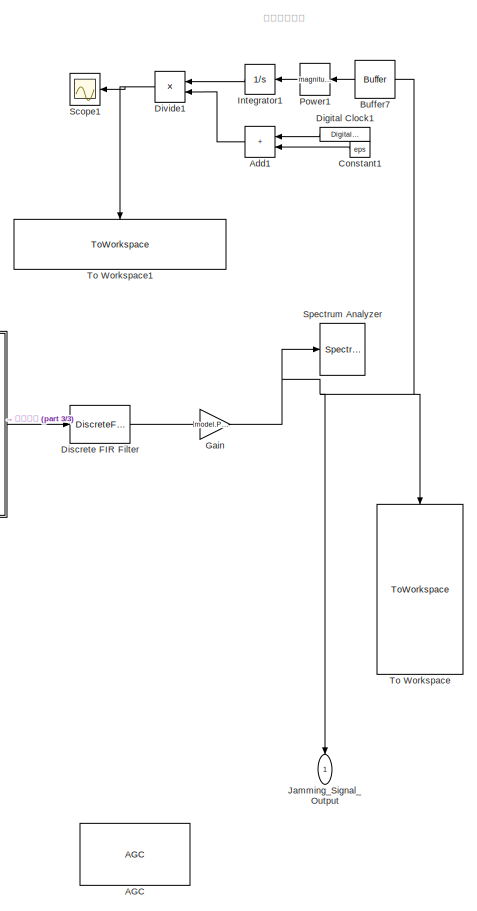
[diagram: root canvas - part 1/3, right side, full height]
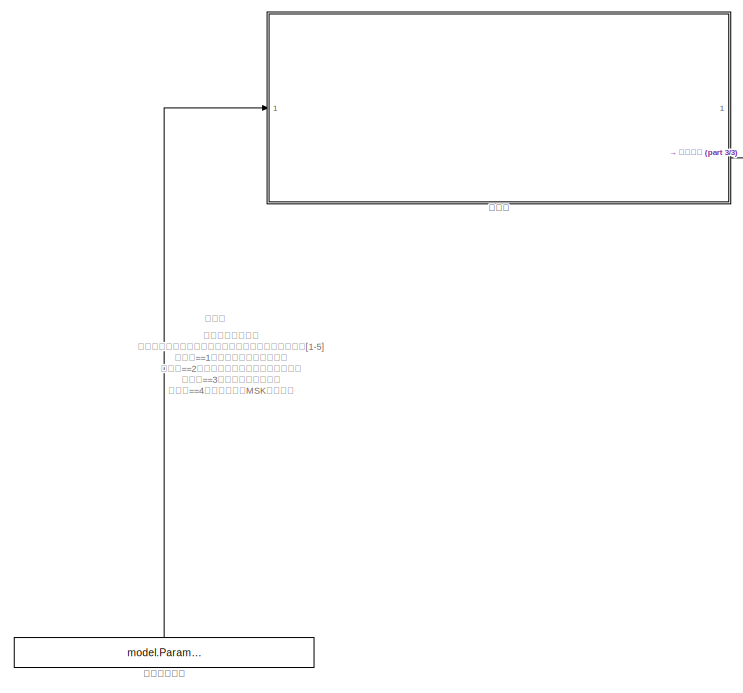
[diagram: root canvas - part 2/3, left side, full height]
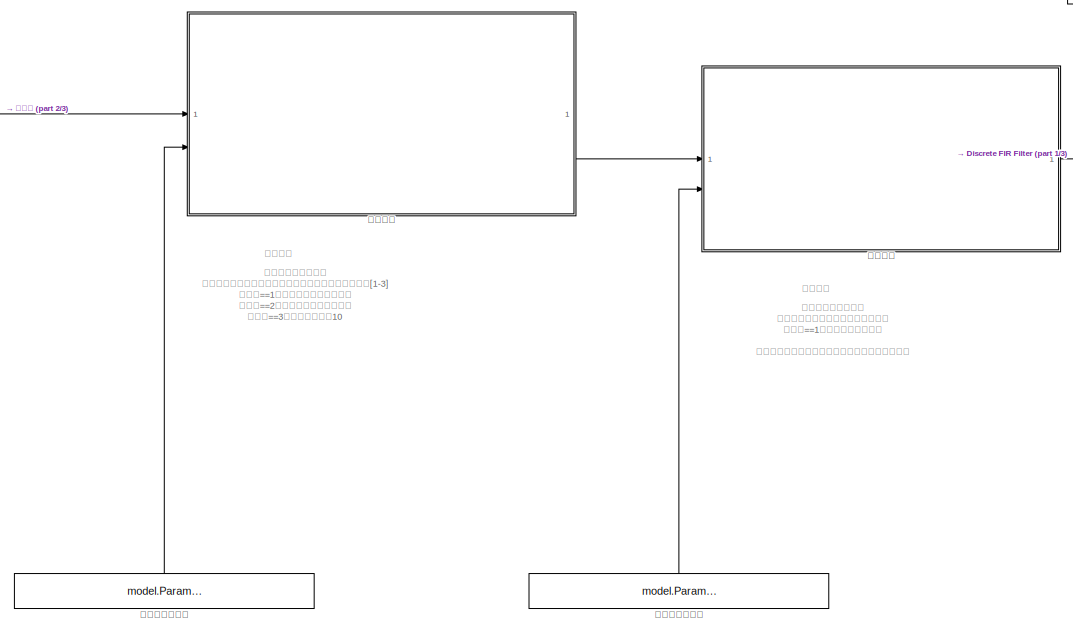
[diagram: root canvas - part 3/3, central region]
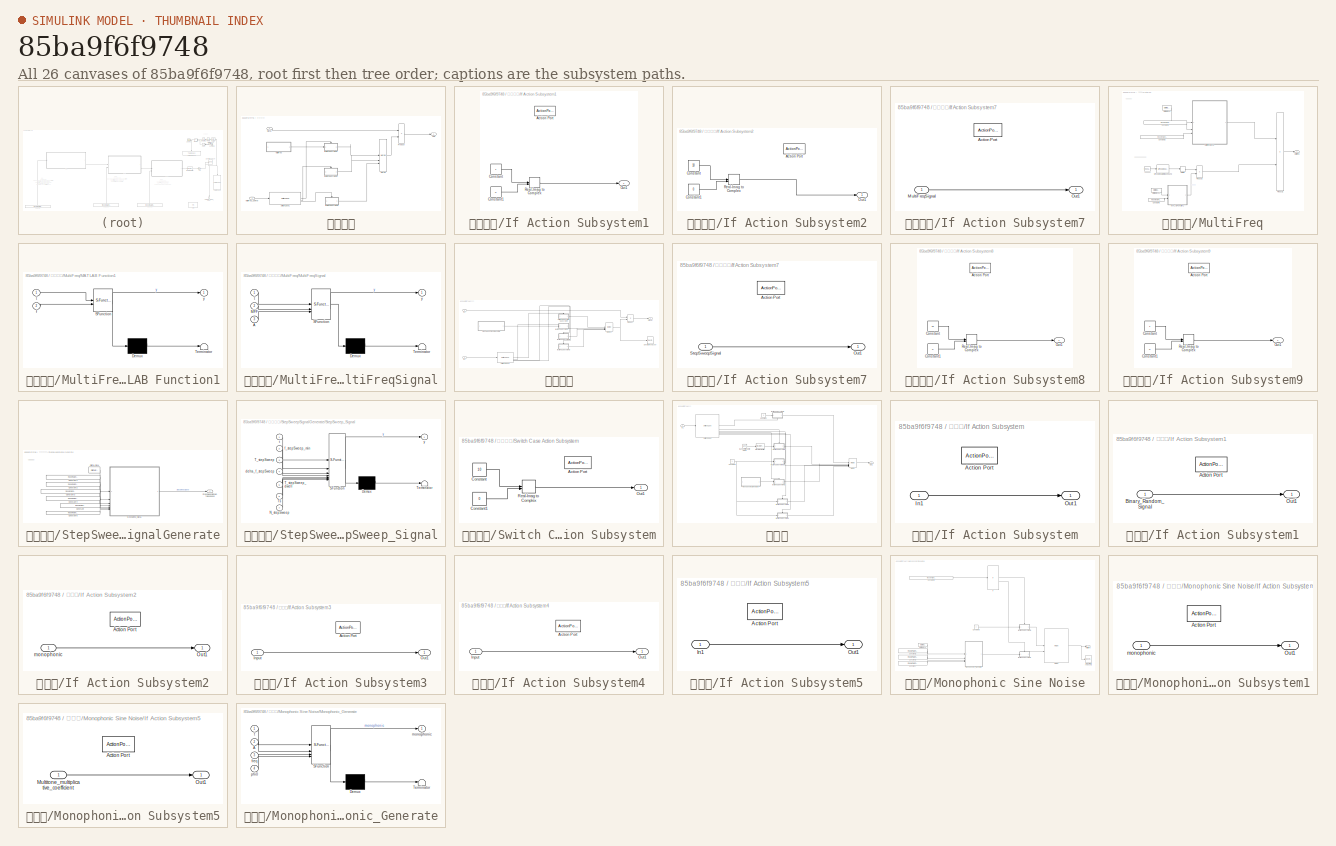
[diagram: thumbnail index - all 26 canvases of the model, root first then tree order]
MODEL slx_85ba9f6f9748
KIND model
CONFIG AbsTol = auto
CONFIG EnableMultiTasking = off
CONFIG FixedStep = auto
CONFIG InitFcn = % initial_data
CONFIG MaxStep = auto
CONFIG MinStep = auto
CONFIG RelTol = 1e-3
CONFIG SampleTimeConstraint = Unconstrained
CONFIG SolverName = VariableStepAuto
CONFIG StartTime = 0.0
CONFIG StopTime = 0.005
BLOCK [Reference] AGC  REF=commrfcorlib/AGC
  Commented = on
  SourceBlock = commrfcorlib/AGC
  SourceType = AGC
BLOCK [Sum] Add1
  IconShape = rectangular
  NameLocation = top
BLOCK [Buffer] Buffer7
  N = 1
  NameLocation = top
  OutputFrames = off
BLOCK [Constant] Constant1
  NameLocation = top
  SampleTime = model.Parameters.NoiseGen.NoiseTs
  Value = eps
BLOCK [DigitalClock] Digital Clock1
  NameLocation = top
  SampleTime = model.Parameters.NoiseGen.NoiseTs
BLOCK [DiscreteFir] Discrete FIR Filter
  Coefficients = model.Parameters.NoiseGen.noise_filter_b
  InputPortMap = u0
  OutputPortMap = o0
BLOCK [Product] Divide1
  Inputs = */
  NameLocation = top
BLOCK [Gain] Gain
  Gain = model.Parameters.jammer_power_controller
BLOCK [Integrator] Integrator1
  NameLocation = top
BLOCK [Outport] Jamming_Signal_Output
  NameLocation = top
BLOCK [Math] Power1
  NameLocation = top
  Operator = magnitude^2
BLOCK [Scope] Scope1
  Floating = off
  NameLocation = top
  NumInputPorts = 1
  ScopeSpecificationString = Simulink.scopes.TimeScopeBlockCfg('CurrentConfiguration', extmgr.ConfigurationSet(extmgr.Configuration('Core','General UI',true),extmgr.Configuration('Core','Source UI',true),extmgr.Configuration('Sources','WiredSimulink',true,'DataLoggingVariableName','ScopeData1'),extmgr.Configuration('Visuals','Time Domain',true,'SerializedDisplays',{struct('MinYLimReal','-13.45061','MaxYLimReal','121.05549','Y...<+1756ch>
BLOCK [SpectrumAnalyzer] Spectrum Analyzer
  AllowFFTLengthLessThanSamplesPerUpdate = on
  AveragingMethod = Exponential
  AxesScaling = Manual
  Commented = on
  GraphicalSettings = {"GraphicalSettings":{"Cursors":{"Enabled":"true","LockSpacing":"false","SnapToData":"true","XLocation":"[-7745098.03921569 3320312.5]"},"SpectralMask":{"CustomReferenceLevel":"0","EnabledMasks":"None","LowerMask":"-Inf","MaskFrequencyOffset":"0","ReferenceLevel":"Custom","SelectedChannel":"1","UpperMask":"Inf"},"Style":{"AxesColor":"[0 0 0]","Cursor1TraceSource":"1","Cursor2TraceSource":"1","Curs...<+698ch>
  NameLocation = right
  SampleRate = 340000000
  ScopeSpecificationString = spbscopes.SpectrumAnalyzerBlockCfg('CurrentConfiguration', extmgr.ConfigurationSet(extmgr.Configuration('Core','General UI',true),extmgr.Configuration('Core','Source UI',true),extmgr.Configuration('Sources','WiredSimulink',true),extmgr.Configuration('Visuals','Spectrum',true,'AxesProperties',struct('Color',{[0 0 0],[0 0 0]},'XColor',{[0.686274509803922 0.686274509803922 0.686274509803922],[0.68627...<+2633ch>
  Span = 340000000
  StartFrequency = -170000000
  StopFrequency = 170000000
  WasSavedAsWebScope = on
  WindowPosition = [162 288 916 450]
  YLimits = [16.792703666476541002,24.095744456486141161]
BLOCK [ToWorkspace] To Workspace
  FixptAsFi = on
  MaxDataPoints = inf
  NameLocation = left
  SampleTime = -1
  SaveFormat = Timeseries
  VariableName = Noise
BLOCK [ToWorkspace] To Workspace1
  FixptAsFi = on
  MaxDataPoints = inf
  NameLocation = left
  SampleTime = -1
  SaveFormat = Timeseries
  VariableName = NoisePowerEstimation
BLOCK [SubSystem] 多频干扰
BLOCK [SubSystem] 多频干扰/If Action Subsystem1
  TreatAsAtomicUnit = on
BLOCK [ActionPort] 多频干扰/If Action Subsystem1/Action Port
  ActionPortLabel = default:
BLOCK [Constant] 多频干扰/If Action Subsystem1/Constant
BLOCK [Constant] 多频干扰/If Action Subsystem1/Constant1
  Value = 0
BLOCK [Outport] 多频干扰/If Action Subsystem1/Out1
BLOCK [RealImagToComplex] 多频干扰/If Action Subsystem1/Real-Imag to Complex
BLOCK [SubSystem] 多频干扰/If Action Subsystem2
  TreatAsAtomicUnit = on
BLOCK [ActionPort] 多频干扰/If Action Subsystem2/Action Port
  ActionPortLabel = case [ 2 ]:
BLOCK [Constant] 多频干扰/If Action Subsystem2/Constant
  Value = 10
BLOCK [Constant] 多频干扰/If Action Subsystem2/Constant1
  Value = 0
BLOCK [Outport] 多频干扰/If Action Subsystem2/Out1
BLOCK [RealImagToComplex] 多频干扰/If Action Subsystem2/Real-Imag to Complex
BLOCK [SubSystem] 多频干扰/If Action Subsystem7
  TreatAsAtomicUnit = on
BLOCK [ActionPort] 多频干扰/If Action Subsystem7/Action Port
  ActionPortLabel = case [ 1 ]:
BLOCK [Inport] 多频干扰/If Action Subsystem7/MultiFreqSignal
BLOCK [Outport] 多频干扰/If Action Subsystem7/Out1
BLOCK [Merge] 多频干扰/Merge
  Inputs = 3
BLOCK [SubSystem] 多频干扰/MultiFreq
BLOCK [Buffer] 多频干扰/MultiFreq/Buffer7
  N = 1
  OutputFrames = off
BLOCK [Constant] 多频干扰/MultiFreq/Constant1
  Value = model.Parameters.NoiseGen.MultiFreq.MFF
BLOCK [Constant] 多频干扰/MultiFreq/Constant2
  Value = model.Parameters.NoiseGen.MultiFreq.MFA
BLOCK [Constant] 多频干扰/MultiFreq/Constant6
  Value = model.Parameters.NoiseGen.MultiFreq.MFDistance*(model.Parameters.NoiseGen.MultiFreq.MFNum/2-0.5)
BLOCK [DigitalClock] 多频干扰/MultiFreq/Digital Clock
  SampleTime = model.Parameters.NoiseGen.NoiseTs
BLOCK [DigitalClock] 多频干扰/MultiFreq/Digital Clock1
  SampleTime = model.Parameters.NoiseGen.NoiseTs
BLOCK [Reference] 多频干扰/MultiFreq/M-FSK Modulator Baseband  REF=commdigbbndfm2/M-FSK
Modulator
Baseband
  SourceBlock = commdigbbndfm2/M-FSK\nModulator\nBaseband
  SourceType = M-FSK Modulator Baseband
  UserDataPersistent = on
BLOCK [SubSystem] 多频干扰/MultiFreq/MATLAB Function1
  ErrorFcn = Stateflow.Translate.translate
  InitFcn = f_chirp_min=4.8e6;\nf_chirp_max=5.2e6;\nT_chirp=4e-4;
  LibrarySourceBlock = simulink/User-Defined\nFunctions/MATLAB Function
  PermitHierarchicalResolution = ExplicitOnly
  SFBlockType = MATLAB Function
  TreatAsAtomicUnit = on
BLOCK [Demux] 多频干扰/MultiFreq/MATLAB Function1/ Demux 
  Outputs = 1
BLOCK [S-Function] 多频干扰/MultiFreq/MATLAB Function1/ SFunction 
  EnableBusSupport = on
  FunctionName = sf_sfun
  PortCounts = [2 2]
  SFcnIsStateOwnerBlock = off
  SFunctionDeploymentMode = off
  Tag = Stateflow S-Function 13
BLOCK [Terminator] 多频干扰/MultiFreq/MATLAB Function1/ Terminator 
BLOCK [Inport] 多频干扰/MultiFreq/MATLAB Function1/f
  Port = 2
BLOCK [Inport] 多频干扰/MultiFreq/MATLAB Function1/t
BLOCK [Outport] 多频干扰/MultiFreq/MATLAB Function1/y
BLOCK [Outport] 多频干扰/MultiFreq/MultiFreq
BLOCK [SubSystem] 多频干扰/MultiFreq/MultiFreqSignal
  ErrorFcn = Stateflow.Translate.translate
  LibrarySourceBlock = simulink/User-Defined\nFunctions/MATLAB Function
  PermitHierarchicalResolution = ExplicitOnly
  SFBlockType = MATLAB Function
  TreatAsAtomicUnit = on
BLOCK [Demux] 多频干扰/MultiFreq/MultiFreqSignal/ Demux 
  Outputs = 1
BLOCK [S-Function] 多频干扰/MultiFreq/MultiFreqSignal/ SFunction 
  EnableBusSupport = on
  FunctionName = sf_sfun
  PortCounts = [3 2]
  SFcnIsStateOwnerBlock = off
  SFunctionDeploymentMode = off
  Tag = Stateflow S-Function 17
BLOCK [Terminator] 多频干扰/MultiFreq/MultiFreqSignal/ Terminator 
BLOCK [Inport] 多频干扰/MultiFreq/MultiFreqSignal/A
  Port = 3
BLOCK [Inport] 多频干扰/MultiFreq/MultiFreqSignal/MFF
  Port = 2
BLOCK [Inport] 多频干扰/MultiFreq/MultiFreqSignal/t
BLOCK [Outport] 多频干扰/MultiFreq/MultiFreqSignal/y
BLOCK [Product] 多频干扰/MultiFreq/Product1
BLOCK [Product] 多频干扰/MultiFreq/Product3
BLOCK [Reference] 多频干扰/MultiFreq/跳频信号编码  REF=simulink/Sources/Repeating
Sequence
Stair
  SourceBlock = simulink/Sources/Repeating\nSequence\nStair
  SourceType = Repeating Sequence Stair
BLOCK [Inport] 多频干扰/MultiFreq_Control
  Port = 2
BLOCK [Outport] 多频干扰/Out1
BLOCK [Product] 多频干扰/Product
BLOCK [Inport] 多频干扰/Signal
BLOCK [SwitchCase] 多频干扰/Switch Case1
  CaseConditions = {1,2}
BLOCK [Constant] 多频干扰控制位
  NameLocation = right
  SampleTime = Inf
  Value = model.Parameters.NoiseGen.Control.MultiFreq
BLOCK [SubSystem] 干扰方式
BLOCK [SubSystem] 干扰方式/If Action Subsystem7
  TreatAsAtomicUnit = on
BLOCK [ActionPort] 干扰方式/If Action Subsystem7/Action Port
  ActionPortLabel = case [ 2 ]:
BLOCK [Outport] 干扰方式/If Action Subsystem7/Out1
BLOCK [Inport] 干扰方式/If Action Subsystem7/StepSweepSignal
BLOCK [SubSystem] 干扰方式/If Action Subsystem8
  TreatAsAtomicUnit = on
BLOCK [ActionPort] 干扰方式/If Action Subsystem8/Action Port
  ActionPortLabel = case [ 3 ]:
BLOCK [Constant] 干扰方式/If Action Subsystem8/Constant
  Value = 10
BLOCK [Constant] 干扰方式/If Action Subsystem8/Constant1
  Value = 0
BLOCK [Outport] 干扰方式/If Action Subsystem8/Out1
BLOCK [RealImagToComplex] 干扰方式/If Action Subsystem8/Real-Imag to Complex
BLOCK [SubSystem] 干扰方式/If Action Subsystem9
  TreatAsAtomicUnit = on
BLOCK [ActionPort] 干扰方式/If Action Subsystem9/Action Port
  ActionPortLabel = default:
BLOCK [Constant] 干扰方式/If Action Subsystem9/Constant
BLOCK [Constant] 干扰方式/If Action Subsystem9/Constant1
  Value = 0
BLOCK [Outport] 干扰方式/If Action Subsystem9/Out1
BLOCK [RealImagToComplex] 干扰方式/If Action Subsystem9/Real-Imag to Complex
BLOCK [Inport] 干扰方式/In1
BLOCK [Inport] 干扰方式/In2
  Port = 2
BLOCK [Merge] 干扰方式/Merge2
  Inputs = 4
BLOCK [Product] 干扰方式/Product
BLOCK [Outport] 干扰方式/Signal
BLOCK [SpectrumAnalyzer] 干扰方式/Spectrum Analyzer
  AllowFFTLengthLessThanSamplesPerUpdate = on
  AveragingMethod = Exponential
  AxesScaling = Manual
  Commented = on
  GraphicalSettings = {"GraphicalSettings":{"Cursors":{"Enabled":"true","LockSpacing":"false","SnapToData":"true","XLocation":"[-14774044.032445 1328125]"},"SpectralMask":{"CustomReferenceLevel":"0","EnabledMasks":"None","LowerMask":"-Inf","MaskFrequencyOffset":"0","ReferenceLevel":"Custom","SelectedChannel":"1","UpperMask":"Inf"},"Style":{"AxesColor":"[0 0 0]","Cursor1TraceSource":"1","Cursor2TraceSource":"1","CursorC...<+640ch>
  NameLocation = right
  SampleRate = 340000000
  ScopeSpecificationString = spbscopes.SpectrumAnalyzerBlockCfg('CurrentConfiguration', extmgr.ConfigurationSet(extmgr.Configuration('Core','General UI',true),extmgr.Configuration('Core','Source UI',true),extmgr.Configuration('Sources','WiredSimulink',true),extmgr.Configuration('Visuals','Spectrum',true,'AxesProperties',struct('Color',{[0 0 0],[0 0 0]},'XColor',{[0.686274509803922 0.686274509803922 0.686274509803922],[0.68627...<+2579ch>
  Span = 340000000
  StartFrequency = -170000000
  StopFrequency = 170000000
  WasSavedAsWebScope = on
  WindowPosition = [-1041 199 916 450]
  YLimits = [-55.253534235882824532,34.529267970454846193]
BLOCK [SubSystem] 干扰方式/StepSweepSignalGenerate
BLOCK [Constant] 干扰方式/StepSweepSignalGenerate/Constant
  Value = model.Parameters.NoiseGen.NoiseTs
BLOCK [Constant] 干扰方式/StepSweepSignalGenerate/Constant1
  Value = model.Parameters.NoiseGen.Jamming.StepSweepFmin
BLOCK [Constant] 干扰方式/StepSweepSignalGenerate/Constant2
  Value = model.Parameters.NoiseGen.Jamming.StepSweepT
BLOCK [Constant] 干扰方式/StepSweepSignalGenerate/Constant3
  Value = model.Parameters.NoiseGen.Jamming.StepSweepDeltaFstep
BLOCK [Constant] 干扰方式/StepSweepSignalGenerate/Constant4
  Value = model.Parameters.NoiseGen.Jamming.StepSweepTDwell
BLOCK [Constant] 干扰方式/StepSweepSignalGenerate/Constant5
  Value = model.Parameters.NoiseGen.Jamming.StepSweepN
BLOCK [DigitalClock] 干扰方式/StepSweepSignalGenerate/Digital Clock
  SampleTime = model.Parameters.NoiseGen.NoiseTs
BLOCK [Outport] 干扰方式/StepSweepSignalGenerate/StepSweepSignalOfBaseband
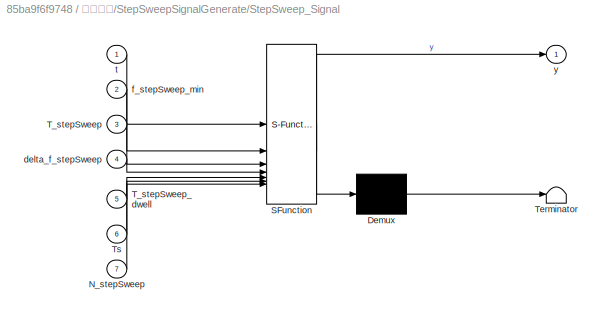
BLOCK [SubSystem] 干扰方式/StepSweepSignalGenerate/StepSweep_Signal
  ErrorFcn = Stateflow.Translate.translate
  LibrarySourceBlock = simulink/User-Defined\nFunctions/MATLAB Function
  PermitHierarchicalResolution = ExplicitOnly
  SFBlockType = MATLAB Function
  TreatAsAtomicUnit = on
BLOCK [Demux] 干扰方式/StepSweepSignalGenerate/StepSweep_Signal/ Demux 
  Outputs = 1
BLOCK [S-Function] 干扰方式/StepSweepSignalGenerate/StepSweep_Signal/ SFunction 
  EnableBusSupport = on
  FunctionName = sf_sfun
  PortCounts = [7 2]
  SFcnIsStateOwnerBlock = off
  SFunctionDeploymentMode = off
  Tag = Stateflow S-Function 8
BLOCK [Terminator] 干扰方式/StepSweepSignalGenerate/StepSweep_Signal/ Terminator 
BLOCK [Inport] 干扰方式/StepSweepSignalGenerate/StepSweep_Signal/N_stepSweep
  Port = 7
BLOCK [Inport] 干扰方式/StepSweepSignalGenerate/StepSweep_Signal/T_stepSweep
  Port = 3
BLOCK [Inport] 干扰方式/StepSweepSignalGenerate/StepSweep_Signal/T_stepSweep_dwell
  Port = 5
BLOCK [Inport] 干扰方式/StepSweepSignalGenerate/StepSweep_Signal/Ts
  Port = 6
BLOCK [Inport] 干扰方式/StepSweepSignalGenerate/StepSweep_Signal/delta_f_stepSweep
  Port = 4
BLOCK [Inport] 干扰方式/StepSweepSignalGenerate/StepSweep_Signal/f_stepSweep_min
  Port = 2
BLOCK [Inport] 干扰方式/StepSweepSignalGenerate/StepSweep_Signal/t
BLOCK [Outport] 干扰方式/StepSweepSignalGenerate/StepSweep_Signal/y
BLOCK [SubSystem] 干扰方式/Switch Case Action Subsystem
  TreatAsAtomicUnit = on
BLOCK [ActionPort] 干扰方式/Switch Case Action Subsystem/Action Port
  ActionPortLabel = case [ 1 ]:
BLOCK [Constant] 干扰方式/Switch Case Action Subsystem/Constant
  Value = 10
BLOCK [Constant] 干扰方式/Switch Case Action Subsystem/Constant1
  Value = 0
BLOCK [Outport] 干扰方式/Switch Case Action Subsystem/Out1
BLOCK [RealImagToComplex] 干扰方式/Switch Case Action Subsystem/Real-Imag to Complex
BLOCK [SwitchCase] 干扰方式/Switch Case2
  CaseConditions = {1,2,3}
BLOCK [Constant] 干扰方式控制位
  NameLocation = right
  SampleTime = Inf
  Value = model.Parameters.NoiseGen.Control.Jamming
BLOCK [SubSystem] 干扰源
BLOCK [Reference] 干扰源/Band-Limited White Noise  REF=simulink/Sources/Band-Limited
White Noise
  SourceBlock = simulink/Sources/Band-Limited\nWhite Noise
  SourceType = Band-Limited White Noise.
BLOCK [Constant] 干扰源/Constant
  Value = 0
BLOCK [Constant] 干扰源/Constant1
BLOCK [DiscreteFir] 干扰源/Discrete FIR Filter
  Coefficients = model.Parameters.NoiseGen.pulse_noise_filter_b
  InputPortMap = u0
  OutputPortMap = o0
BLOCK [SubSystem] 干扰源/If Action Subsystem
  TreatAsAtomicUnit = on
BLOCK [ActionPort] 干扰源/If Action Subsystem/Action Port
  ActionPortLabel = case [ 1 ]:
BLOCK [Inport] 干扰源/If Action Subsystem/In1
BLOCK [Outport] 干扰源/If Action Subsystem/Out1
BLOCK [SubSystem] 干扰源/If Action Subsystem1
  TreatAsAtomicUnit = on
BLOCK [ActionPort] 干扰源/If Action Subsystem1/Action Port
  ActionPortLabel = case [ 2 ]:
BLOCK [Inport] 干扰源/If Action Subsystem1/Binary_Random_Signal
BLOCK [Outport] 干扰源/If Action Subsystem1/Out1
BLOCK [SubSystem] 干扰源/If Action Subsystem2
  TreatAsAtomicUnit = on
BLOCK [ActionPort] 干扰源/If Action Subsystem2/Action Port
  ActionPortLabel = case [ 3 ]:
BLOCK [Outport] 干扰源/If Action Subsystem2/Out1
BLOCK [Inport] 干扰源/If Action Subsystem2/monophonic
BLOCK [SubSystem] 干扰源/If Action Subsystem3
  TreatAsAtomicUnit = on
BLOCK [ActionPort] 干扰源/If Action Subsystem3/Action Port
  ActionPortLabel = case [ 4 ]:
BLOCK [Inport] 干扰源/If Action Subsystem3/Input
BLOCK [Outport] 干扰源/If Action Subsystem3/Out1
BLOCK [SubSystem] 干扰源/If Action Subsystem4
  TreatAsAtomicUnit = on
BLOCK [ActionPort] 干扰源/If Action Subsystem4/Action Port
  ActionPortLabel = case [ 5 ]:
BLOCK [Inport] 干扰源/If Action Subsystem4/Input
BLOCK [Outport] 干扰源/If Action Subsystem4/Out1
BLOCK [SubSystem] 干扰源/If Action Subsystem5
  TreatAsAtomicUnit = on
BLOCK [ActionPort] 干扰源/If Action Subsystem5/Action Port
  ActionPortLabel = case [ 0 ]:
BLOCK [Inport] 干扰源/If Action Subsystem5/In1
BLOCK [Outport] 干扰源/If Action Subsystem5/Out1
BLOCK [Inport] 干扰源/In1
BLOCK [Merge] 干扰源/Merge
  Inputs = 6
BLOCK [SubSystem] 干扰源/Monophonic Sine Noise
BLOCK [Constant] 干扰源/Monophonic Sine Noise/Constant
  Value = model.Parameters.NoiseGen.SineNoisePhi0
BLOCK [Constant] 干扰源/Monophonic Sine Noise/Constant1
  Value = model.Parameters.NoiseGen.SineNoiseF
BLOCK [Constant] 干扰源/Monophonic Sine Noise/Constant2
  Value = model.Parameters.NoiseGen.SineNoiseA
BLOCK [Constant] 干扰源/Monophonic Sine Noise/Constant3
BLOCK [Constant] 干扰源/Monophonic Sine Noise/Constant6
  Value = model.Parameters.NoiseGen.SineNoiseMulti_selection
BLOCK [DigitalClock] 干扰源/Monophonic Sine Noise/Digital Clock
  SampleTime = model.Parameters.NoiseGen.NoiseTs
BLOCK [If] 干扰源/Monophonic Sine Noise/If
  IfExpression = u1 == 1
BLOCK [SubSystem] 干扰源/Monophonic Sine Noise/If Action Subsystem1
  TreatAsAtomicUnit = on
BLOCK [ActionPort] 干扰源/Monophonic Sine Noise/If Action Subsystem1/Action Port
  ActionPortLabel = else
BLOCK [Outport] 干扰源/Monophonic Sine Noise/If Action Subsystem1/Out1
BLOCK [Inport] 干扰源/Monophonic Sine Noise/If Action Subsystem1/monophonic
BLOCK [SubSystem] 干扰源/Monophonic Sine Noise/If Action Subsystem5
  TreatAsAtomicUnit = on
BLOCK [ActionPort] 干扰源/Monophonic Sine Noise/If Action Subsystem5/Action Port
  ActionPortLabel = if(u1 == 1)
BLOCK [Inport] 干扰源/Monophonic Sine Noise/If Action Subsystem5/Multitone_multiplicative_coefficient
BLOCK [Outport] 干扰源/Monophonic Sine Noise/If Action Subsystem5/Out1
BLOCK [Merge] 干扰源/Monophonic Sine Noise/Merge
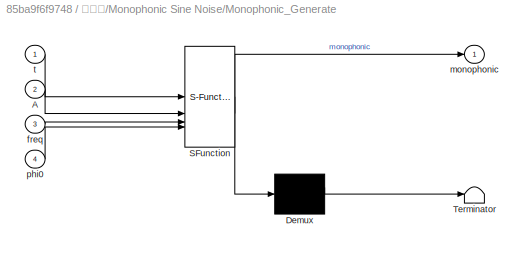
BLOCK [SubSystem] 干扰源/Monophonic Sine Noise/Monophonic_Generate
  ErrorFcn = Stateflow.Translate.translate
  LibrarySourceBlock = simulink/User-Defined\nFunctions/MATLAB Function
  PermitHierarchicalResolution = ExplicitOnly
  SFBlockType = MATLAB Function
  TreatAsAtomicUnit = on
BLOCK [Demux] 干扰源/Monophonic Sine Noise/Monophonic_Generate/ Demux 
  Outputs = 1
BLOCK [S-Function] 干扰源/Monophonic Sine Noise/Monophonic_Generate/ SFunction 
  EnableBusSupport = on
  FunctionName = sf_sfun
  PortCounts = [4 2]
  SFcnIsStateOwnerBlock = off
  SFunctionDeploymentMode = off
  Tag = Stateflow S-Function 3
BLOCK [Terminator] 干扰源/Monophonic Sine Noise/Monophonic_Generate/ Terminator 
BLOCK [Inport] 干扰源/Monophonic Sine Noise/Monophonic_Generate/A
  Port = 2
BLOCK [Inport] 干扰源/Monophonic Sine Noise/Monophonic_Generate/freq
  Port = 3
BLOCK [Outport] 干扰源/Monophonic Sine Noise/Monophonic_Generate/monophonic
BLOCK [Inport] 干扰源/Monophonic Sine Noise/Monophonic_Generate/phi0
  Port = 4
BLOCK [Inport] 干扰源/Monophonic Sine Noise/Monophonic_Generate/t
BLOCK [SpectrumAnalyzer] 干扰源/Monophonic Sine Noise/Spectrum Analyzer1
  AllowFFTLengthLessThanSamplesPerUpdate = on
  AveragingMethod = Exponential
  AxesScaling = Manual
  Commented = on
  GraphicalSettings = {"GraphicalSettings":{"Channel":{"ACPROffsets":"[68000000 119000000]","AdjacentBW":"34000000","CenterFrequency":"0","Enabled":"false","FilterCoeff":"0.5","FilterShape":"None","FrequencySpan":"span-and-center-frequency","NumOffsets":"2","PercentOccupiedBW":"99","Span":"68000000","StartFrequency":"-34000000","StopFrequency":"34000000","Type":"occupied-bandwidth"},"Cursors":{"Enabled":"true","LockSpa...<+990ch>
  NameLocation = right
  SampleRate = 340000000
  ScopeSpecificationString = spbscopes.SpectrumAnalyzerBlockCfg('CurrentConfiguration', extmgr.ConfigurationSet(extmgr.Configuration('Core','General UI',true),extmgr.Configuration('Core','Source UI',true),extmgr.Configuration('Sources','WiredSimulink',true),extmgr.Configuration('Visuals','Spectrum',true,'AxesProperties',struct('Color',{[0 0 0],[0 0 0]},'XColor',{[0.686274509803922 0.686274509803922 0.686274509803922],[0.68627...<+2835ch>
  Span = 340000000
  StartFrequency = -170000000
  StopFrequency = 170000000
  WasSavedAsWebScope = on
  WindowPosition = [-1168 236 916 450]
  YLimits = [-88.119268432802542179,31.5056137623361181]
BLOCK [Outport] 干扰源/Monophonic Sine Noise/multitone
BLOCK [Outport] 干扰源/Out1
BLOCK [SwitchCase] 干扰源/Switch Case
  CaseConditions = {0,1,2,3,4,5}
BLOCK [Constant] 干扰源控制位
  SampleTime = Inf
  Value = model.Parameters.NoiseGen.Control.Source
ANNOTATION (root): 功率估计部分
ANNOTATION (root): 多频干扰
ANNOTATION (root): 多频干扰模块功能： 由调制方式控制位来是否为多频干扰 控制位==1的时候，是多频干扰 控制位不在上面集合范围的时候，不变输出，警告
ANNOTATION (root): 干扰方式
ANNOTATION (root): 干扰方式模块功能： 由调制方式控制位来控制调制方式，控制位变化范围是[1-3] 控制位==1的时候，是线性跳频干扰 控制位==2的时候，是步进跳频干扰 控制位==3的时候，增益为10 控制位不在上面集合范围的时候，不变输出，警告
ANNOTATION (root): 干扰源
ANNOTATION (root): 干扰源模块功能： 由干扰源控制位来控制干扰源的波形，控制变换范围是[1-5] 控制位==1的时候，输出高斯白噪声 控制位==2的时候，输出随机二元码调制噪声 控制位==3的时候，输出正弦波 控制位==4的时候，输出MSK干扰噪声 控制位==5的时候，输出窄带高斯噪声 控制位不在上面的集合的时候，没有输出
ANNOTATION 多频干扰/MultiFreq: 多音干扰模块
ANNOTATION 多频干扰/MultiFreq: 帧信号对应的本地载波生成
ANNOTATION 干扰方式/StepSweepSignalGenerate: 步进调频模块
LINE Add1:1 -> Divide1:2
LINE Buffer7:1 -> Power1:1
LINE Constant1:1 -> Add1:2
LINE Digital Clock1:1 -> Add1:1
LINE Discrete FIR Filter:1 -> Gain:1
NET Divide1:1 -> Scope1:1, To Workspace1:1
NET Gain:1 -> Buffer7:1, Jamming_Signal_Output:1, Spectrum Analyzer:1, To Workspace:1
LINE Integrator1:1 -> Divide1:1
LINE Power1:1 -> Integrator1:1
LINE 多频干扰/If Action Subsystem1/Constant1:1 -> 多频干扰/If Action Subsystem1/Real-Imag to Complex:2
LINE 多频干扰/If Action Subsystem1/Constant:1 -> 多频干扰/If Action Subsystem1/Real-Imag to Complex:1
LINE 多频干扰/If Action Subsystem1/Real-Imag to Complex:1 -> 多频干扰/If Action Subsystem1/Out1:1
LINE 多频干扰/If Action Subsystem1:1 -> 多频干扰/Merge:3
LINE 多频干扰/If Action Subsystem2/Constant1:1 -> 多频干扰/If Action Subsystem2/Real-Imag to Complex:2
LINE 多频干扰/If Action Subsystem2/Constant:1 -> 多频干扰/If Action Subsystem2/Real-Imag to Complex:1
LINE 多频干扰/If Action Subsystem2/Real-Imag to Complex:1 -> 多频干扰/If Action Subsystem2/Out1:1
LINE 多频干扰/If Action Subsystem2:1 -> 多频干扰/Merge:2
LINE 多频干扰/If Action Subsystem7/MultiFreqSignal:1 -> 多频干扰/If Action Subsystem7/Out1:1
LINE 多频干扰/If Action Subsystem7:1 -> 多频干扰/Merge:1
LINE 多频干扰/Merge:1 -> 多频干扰/Product:2
LINE 多频干扰/MultiFreq/Buffer7:1 -> 多频干扰/MultiFreq/Product3:1
LINE 多频干扰/MultiFreq/Constant1:1 -> 多频干扰/MultiFreq/MultiFreqSignal:2
LINE 多频干扰/MultiFreq/Constant2:1 -> 多频干扰/MultiFreq/MultiFreqSignal:3
LINE 多频干扰/MultiFreq/Constant6:1 -> 多频干扰/MultiFreq/MATLAB Function1:2
LINE 多频干扰/MultiFreq/Digital Clock1:1 -> 多频干扰/MultiFreq/MATLAB Function1:1
LINE 多频干扰/MultiFreq/Digital Clock:1 -> 多频干扰/MultiFreq/MultiFreqSignal:1
LINE 多频干扰/MultiFreq/M-FSK Modulator Baseband:1 -> 多频干扰/MultiFreq/Buffer7:1
LINE 多频干扰/MultiFreq/MATLAB Function1:1 -> 多频干扰/MultiFreq/Product3:2
LINE 多频干扰/MultiFreq/MultiFreqSignal:1 -> 多频干扰/MultiFreq/Product1:1
LINE 多频干扰/MultiFreq/Product1:1 -> 多频干扰/MultiFreq/MultiFreq:1
LINE 多频干扰/MultiFreq/Product3:1 -> 多频干扰/MultiFreq/Product1:2
LINE 多频干扰/MultiFreq/跳频信号编码:1 -> 多频干扰/MultiFreq/M-FSK Modulator Baseband:1
LINE 多频干扰/MultiFreq:1 -> 多频干扰/If Action Subsystem7:1
LINE 多频干扰/MultiFreq_Control:1 -> 多频干扰/Switch Case1:1
LINE 多频干扰/Product:1 -> 多频干扰/Out1:1
LINE 多频干扰/Signal:1 -> 多频干扰/Product:1
LINE 多频干扰/Switch Case1:1 -> 多频干扰/If Action Subsystem7:ifaction
LINE 多频干扰/Switch Case1:2 -> 多频干扰/If Action Subsystem2:ifaction
LINE 多频干扰/Switch Case1:3 -> 多频干扰/If Action Subsystem1:ifaction
LINE 多频干扰:1 -> Discrete FIR Filter:1
LINE 多频干扰控制位:1 -> 多频干扰:2
LINE 干扰方式/If Action Subsystem7/StepSweepSignal:1 -> 干扰方式/If Action Subsystem7/Out1:1
LINE 干扰方式/If Action Subsystem7:1 -> 干扰方式/Merge2:2
LINE 干扰方式/If Action Subsystem8/Constant1:1 -> 干扰方式/If Action Subsystem8/Real-Imag to Complex:2
LINE 干扰方式/If Action Subsystem8/Constant:1 -> 干扰方式/If Action Subsystem8/Real-Imag to Complex:1
LINE 干扰方式/If Action Subsystem8/Real-Imag to Complex:1 -> 干扰方式/If Action Subsystem8/Out1:1
LINE 干扰方式/If Action Subsystem8:1 -> 干扰方式/Merge2:3
LINE 干扰方式/If Action Subsystem9/Constant1:1 -> 干扰方式/If Action Subsystem9/Real-Imag to Complex:2
LINE 干扰方式/If Action Subsystem9/Constant:1 -> 干扰方式/If Action Subsystem9/Real-Imag to Complex:1
LINE 干扰方式/If Action Subsystem9/Real-Imag to Complex:1 -> 干扰方式/If Action Subsystem9/Out1:1
LINE 干扰方式/If Action Subsystem9:1 -> 干扰方式/Merge2:4
LINE 干扰方式/In1:1 -> 干扰方式/Product:1
LINE 干扰方式/In2:1 -> 干扰方式/Switch Case2:1
NET 干扰方式/Merge2:1 -> 干扰方式/Product:2, 干扰方式/Spectrum Analyzer:1
LINE 干扰方式/Product:1 -> 干扰方式/Signal:1
LINE 干扰方式/StepSweepSignalGenerate/Constant1:1 -> 干扰方式/StepSweepSignalGenerate/StepSweep_Signal:2
LINE 干扰方式/StepSweepSignalGenerate/Constant2:1 -> 干扰方式/StepSweepSignalGenerate/StepSweep_Signal:3
LINE 干扰方式/StepSweepSignalGenerate/Constant3:1 -> 干扰方式/StepSweepSignalGenerate/StepSweep_Signal:4
LINE 干扰方式/StepSweepSignalGenerate/Constant4:1 -> 干扰方式/StepSweepSignalGenerate/StepSweep_Signal:5
LINE 干扰方式/StepSweepSignalGenerate/Constant5:1 -> 干扰方式/StepSweepSignalGenerate/StepSweep_Signal:7
LINE 干扰方式/StepSweepSignalGenerate/Constant:1 -> 干扰方式/StepSweepSignalGenerate/StepSweep_Signal:6
LINE 干扰方式/StepSweepSignalGenerate/Digital Clock:1 -> 干扰方式/StepSweepSignalGenerate/StepSweep_Signal:1
LINE 干扰方式/StepSweepSignalGenerate/StepSweep_Signal:1 -> 干扰方式/StepSweepSignalGenerate/StepSweepSignalOfBaseband:1
LINE 干扰方式/StepSweepSignalGenerate:1 -> 干扰方式/If Action Subsystem7:1
LINE 干扰方式/Switch Case Action Subsystem/Constant1:1 -> 干扰方式/Switch Case Action Subsystem/Real-Imag to Complex:2
LINE 干扰方式/Switch Case Action Subsystem/Constant:1 -> 干扰方式/Switch Case Action Subsystem/Real-Imag to Complex:1
LINE 干扰方式/Switch Case Action Subsystem/Real-Imag to Complex:1 -> 干扰方式/Switch Case Action Subsystem/Out1:1
LINE 干扰方式/Switch Case Action Subsystem:1 -> 干扰方式/Merge2:1
LINE 干扰方式/Switch Case2:1 -> 干扰方式/Switch Case Action Subsystem:ifaction
LINE 干扰方式/Switch Case2:2 -> 干扰方式/If Action Subsystem7:ifaction
LINE 干扰方式/Switch Case2:3 -> 干扰方式/If Action Subsystem8:ifaction
LINE 干扰方式/Switch Case2:4 -> 干扰方式/If Action Subsystem9:ifaction
LINE 干扰方式:1 -> 多频干扰:1
LINE 干扰方式控制位:1 -> 干扰方式:2
LINE 干扰源/Band-Limited White Noise:1 -> 干扰源/Discrete FIR Filter:1
NET 干扰源/Constant1:1 -> 干扰源/If Action Subsystem1:1, 干扰源/If Action Subsystem3:1, 干扰源/If Action Subsystem4:1
LINE 干扰源/Constant:1 -> 干扰源/If Action Subsystem5:1
LINE 干扰源/Discrete FIR Filter:1 -> 干扰源/If Action Subsystem:1
LINE 干扰源/If Action Subsystem/In1:1 -> 干扰源/If Action Subsystem/Out1:1
LINE 干扰源/If Action Subsystem1/Binary_Random_Signal:1 -> 干扰源/If Action Subsystem1/Out1:1
LINE 干扰源/If Action Subsystem1:1 -> 干扰源/Merge:3
LINE 干扰源/If Action Subsystem2/monophonic:1 -> 干扰源/If Action Subsystem2/Out1:1
LINE 干扰源/If Action Subsystem2:1 -> 干扰源/Merge:4
LINE 干扰源/If Action Subsystem3/Input:1 -> 干扰源/If Action Subsystem3/Out1:1
LINE 干扰源/If Action Subsystem3:1 -> 干扰源/Merge:5
LINE 干扰源/If Action Subsystem4/Input:1 -> 干扰源/If Action Subsystem4/Out1:1
LINE 干扰源/If Action Subsystem4:1 -> 干扰源/Merge:6
LINE 干扰源/If Action Subsystem5/In1:1 -> 干扰源/If Action Subsystem5/Out1:1
LINE 干扰源/If Action Subsystem5:1 -> 干扰源/Merge:1
LINE 干扰源/If Action Subsystem:1 -> 干扰源/Merge:2
LINE 干扰源/In1:1 -> 干扰源/Switch Case:1
LINE 干扰源/Merge:1 -> 干扰源/Out1:1
LINE 干扰源/Monophonic Sine Noise/Constant1:1 -> 干扰源/Monophonic Sine Noise/Monophonic_Generate:3
LINE 干扰源/Monophonic Sine Noise/Constant2:1 -> 干扰源/Monophonic Sine Noise/Monophonic_Generate:2
LINE 干扰源/Monophonic Sine Noise/Constant3:1 -> 干扰源/Monophonic Sine Noise/If Action Subsystem5:1
LINE 干扰源/Monophonic Sine Noise/Constant6:1 -> 干扰源/Monophonic Sine Noise/If:1
LINE 干扰源/Monophonic Sine Noise/Constant:1 -> 干扰源/Monophonic Sine Noise/Monophonic_Generate:4
LINE 干扰源/Monophonic Sine Noise/Digital Clock:1 -> 干扰源/Monophonic Sine Noise/Monophonic_Generate:1
LINE 干扰源/Monophonic Sine Noise/If Action Subsystem1/monophonic:1 -> 干扰源/Monophonic Sine Noise/If Action Subsystem1/Out1:1
LINE 干扰源/Monophonic Sine Noise/If Action Subsystem1:1 -> 干扰源/Monophonic Sine Noise/Merge:2
LINE 干扰源/Monophonic Sine Noise/If Action Subsystem5/Multitone_multiplicative_coefficient:1 -> 干扰源/Monophonic Sine Noise/If Action Subsystem5/Out1:1
LINE 干扰源/Monophonic Sine Noise/If Action Subsystem5:1 -> 干扰源/Monophonic Sine Noise/Merge:1
LINE 干扰源/Monophonic Sine Noise/If:1 -> 干扰源/Monophonic Sine Noise/If Action Subsystem5:ifaction
LINE 干扰源/Monophonic Sine Noise/If:2 -> 干扰源/Monophonic Sine Noise/If Action Subsystem1:ifaction
NET 干扰源/Monophonic Sine Noise/Merge:1 -> 干扰源/Monophonic Sine Noise/Spectrum Analyzer1:1, 干扰源/Monophonic Sine Noise/multitone:1
LINE 干扰源/Monophonic Sine Noise/Monophonic_Generate:1 -> 干扰源/Monophonic Sine Noise/If Action Subsystem1:1
LINE 干扰源/Monophonic Sine Noise:1 -> 干扰源/If Action Subsystem2:1
LINE 干扰源/Switch Case:1 -> 干扰源/If Action Subsystem5:ifaction
LINE 干扰源/Switch Case:2 -> 干扰源/If Action Subsystem:ifaction
LINE 干扰源/Switch Case:3 -> 干扰源/If Action Subsystem1:ifaction
LINE 干扰源/Switch Case:4 -> 干扰源/If Action Subsystem2:ifaction
LINE 干扰源/Switch Case:5 -> 干扰源/If Action Subsystem3:ifaction
LINE 干扰源/Switch Case:6 -> 干扰源/If Action Subsystem4:ifaction
LINE 干扰源:1 -> 干扰方式:1
LINE 干扰源控制位:1 -> 干扰源:1
note: NET lines group one-source signal fan-out (src -> all destinations, sorted); 1:1 wires keep LINE
CHART 干扰源/Monophonic Sine Noise/Monophonic_Generate states=1 transitions=1
  STATE_LABEL 'eML_blk_kernel()'
  STATE_LABEL 'SCRIPT:\nfunction monophonic = MonophonicGenerate(t, A, freq, phi0)\n    monophonic = A * cos(2*pi*freq*t+phi0);\nend\n'
CHART 干扰方式/StepSweepSignalGenerate/StepSweep_Signal states=1 transitions=1
  STATE_LABEL 'eML_blk_kernel()'
  STATE_LABEL 'SCRIPT:\nfunction y  = StepSweep(t, f_stepSweep_min, T_stepSweep, delta_f_stepSweep, T_stepSweep_dwell, Ts, N_stepSweep)\n    a = mod(t,T_stepSweep) + Ts/10000;\n    b = fix(a/T_stepSweep_dwell);\n    if b == N_stepSweep\n        b = N_stepSweep - 1;\n    end\n    f = (f_stepSweep_min + b*delta_f_stepSweep);\n    y = exp(1i*2*pi*f*t);\nend\n'
CHART 多频干扰/MultiFreq/MATLAB Function1 states=1 transitions=1
  STATE_LABEL 'eML_blk_kernel()'
  STATE_LABEL 'SCRIPT:\n% function y = carrierGenerator(t)\n%     fc = 5e6;\n%     y = exp(1i*2*pi*fc*t);\n\nfunction y = carrierGenerator(t, f)\n    y = exp(1i*2*pi*f*t);\nend\n'
CHART 多频干扰/MultiFreq/MultiFreqSignal states=1 transitions=1
  STATE_LABEL 'eML_blk_kernel()'
  STATE_LABEL 'SCRIPT:\nfunction y  = MultiFreqSignal(t, MFF,A)\n    % MFF表示输入的多频信号的频率与原信号的频率间隔\n    % t表示采样时间\n    % Signal表示需要被多频调制的原信号\n    % A表示对应幅值\n    % Phi0表示对应相位\n    N = length(MFF); \n    MultitoneSignal =complex(zeros(N,1));\n    for num1=1:N\n        MultitoneSignal(num1) = A(num1).*exp(1j*(2*pi.*MFF(num1)*t));\n    end\n    y = sum(MultitoneSignal,"all");\nend\n'
CHART  states=0 transitions=0
CHART  states=0 transitions=0
CHART  states=0 transitions=0
CHART  states=0 transitions=0
